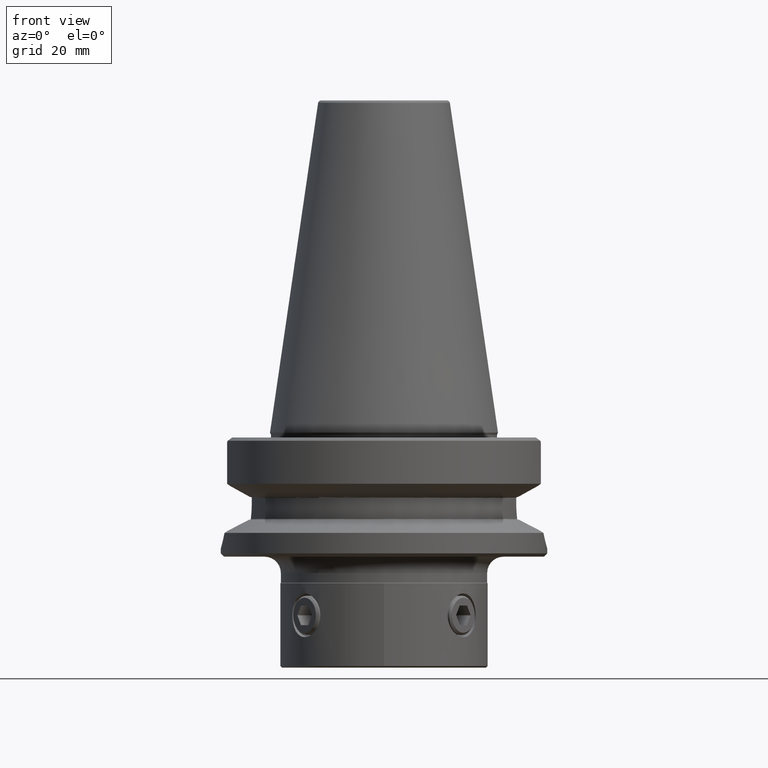
[diagram: clean part render]
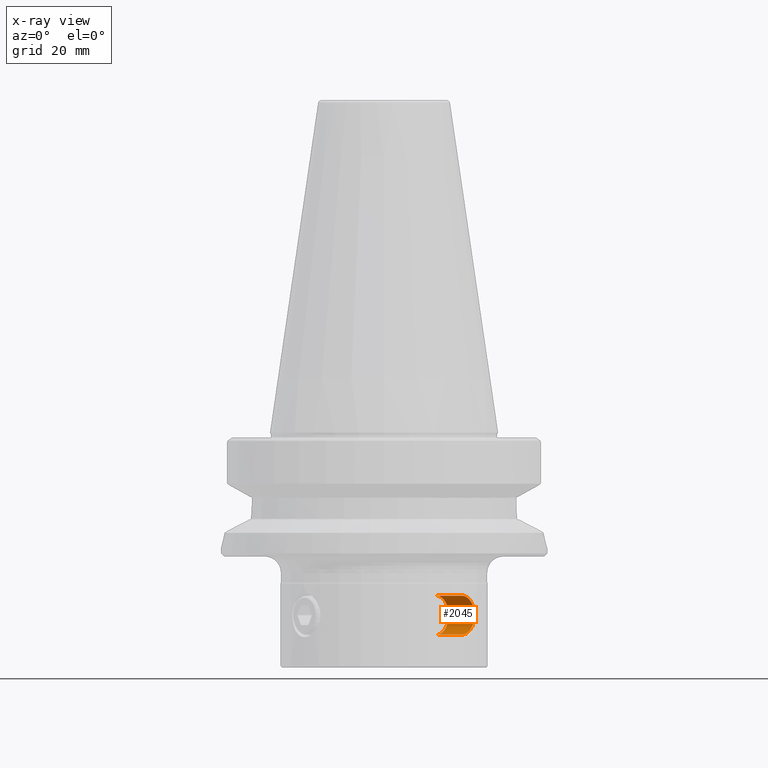
[diagram: x-ray — body ghosted, one internal face saturated and labeled with its STEP entity id]
A machine part, front view, then the same camera in x-ray: the body is ghosted and one INTERNAL B-rep face — a face not visible from any outside direction — is saturated and labeled: STEP entity #2045.
In plain terms, the highlighted cylindrical surface (edge-blend (fillet) strip) has radius 6 mm, axis along (0.766, -0.6428, 0).
Its self-contained STEP definition (entity closure, byte-faithful):
#1351=VERTEX_POINT('NONE',#3821);
#1355=EDGE_CURVE('NONE',#1351,#2107,#3826,.T.);
#1687=VERTEX_POINT('NONE',#4185);
#2045=ADVANCED_FACE('NONE',(#4590),#4591,.T.);
#2073=VERTEX_POINT('NONE',#4622);
#2107=VERTEX_POINT('NONE',#4660);
#2679=EDGE_CURVE('NONE',#1687,#2073,#5295,.T.);
#2723=EDGE_CURVE('NONE',#2107,#2073,#5348,.T.);
#3629=EDGE_CURVE('NONE',#1687,#1351,#6350,.T.);
#3821=CARTESIAN_POINT('',(15.9650529797799,-13.3962700670593,-49.95));
#3826=LINE('',#6607,#6608);
#4185=CARTESIAN_POINT('',(15.9650529797799,-13.3962700670593,-61.95));
#4590=FACE_OUTER_BOUND('',#7993,.T.);
#4591=CYLINDRICAL_SURFACE('',#7994,6.0);
#4622=CARTESIAN_POINT('',(23.862284403156,-20.0228340417359,-61.95));
#4660=CARTESIAN_POINT('',(23.862284403156,-20.0228340417359,-49.95));
#5295=LINE('',#9409,#9410);
#5348=CIRCLE('',#9489,6.0);
#6350=CIRCLE('',#11330,6.0);
#6607=CARTESIAN_POINT('',(24.3219110690274,-20.4085066075478,-49.95));
#6608=VECTOR('',#11598,1000.0);
#7993=EDGE_LOOP('',(#12487,#12488,#12489,#12490));
#7994=AXIS2_PLACEMENT_3D('',#12491,#12492,#12493);
#9409=CARTESIAN_POINT('',(24.3219110690274,-20.4085066075478,-61.95));
#9410=VECTOR('',#13351,1000.0);
#9489=AXIS2_PLACEMENT_3D('',#13430,#13431,#13432);
#11330=AXIS2_PLACEMENT_3D('',#14558,#14559,#14560);
#11598=DIRECTION('',(0.766044443118973,-0.642787609686545,9.09152327074601E-017));
#12487=ORIENTED_EDGE('',*,*,#3629,.T.);
#12488=ORIENTED_EDGE('',*,*,#1355,.T.);
#12489=ORIENTED_EDGE('',*,*,#2723,.T.);
#12490=ORIENTED_EDGE('',*,*,#2679,.F.);
#12491=CARTESIAN_POINT('',(24.3219110690274,-20.4085066075478,-55.95));
#12492=DIRECTION('',(0.766044443118973,-0.642787609686545,9.09152327074601E-017));
#12493=DIRECTION('',(-2.84844408899492E-016,-4.80903341383893E-016,-1.0));
#13351=DIRECTION('',(0.766044443118973,-0.642787609686545,9.09152327074601E-017));
#13430=CARTESIAN_POINT('',(23.862284403156,-20.0228340417359,-55.95));
#13431=DIRECTION('',(-0.766044443118973,0.642787609686545,-9.09152327074601E-017));
#13432=DIRECTION('',(2.84844408899492E-016,4.80903341383893E-016,1.0));
#14558=CARTESIAN_POINT('',(15.9650529797799,-13.3962700670593,-55.95));
#14559=DIRECTION('',(0.766044443118973,-0.642787609686545,9.09152327074601E-017));
#14560=DIRECTION('',(-2.84844408899492E-016,-4.80903341383893E-016,-1.0));